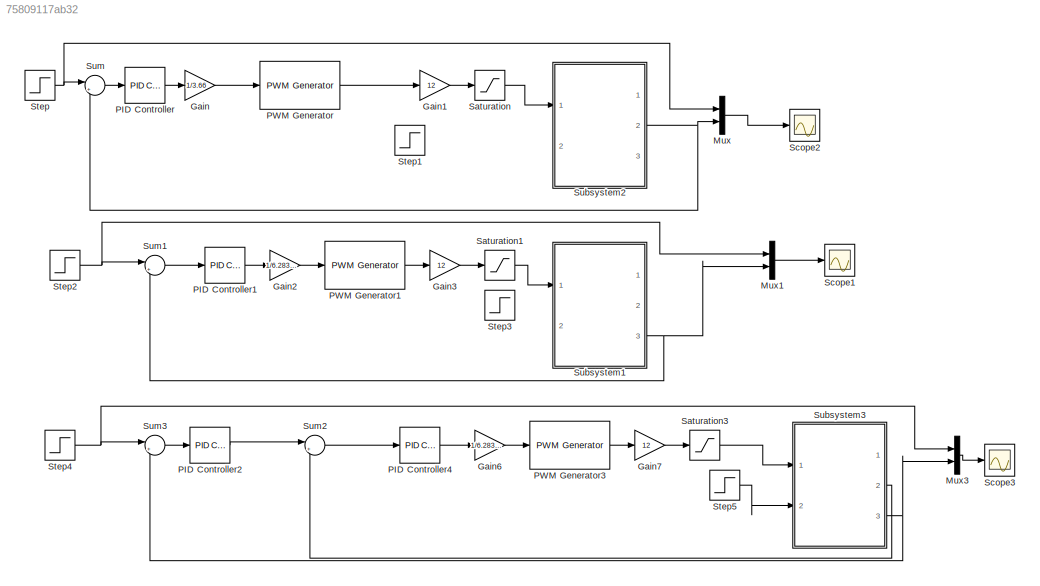
MODEL slx_75809117ab32
KIND model
CONFIG AbsTol = auto
CONFIG EnableMultiTasking = off
CONFIG FixedStep = auto
CONFIG MaxStep = auto
CONFIG MinStep = auto
CONFIG RelTol = 1e-3
CONFIG SampleTimeConstraint = Unconstrained
CONFIG SolverName = VariableStepAuto
CONFIG StartTime = 0.0
CONFIG StopTime = 10.0
BLOCK [Gain] Gain
  Gain = 1/3.66
BLOCK [Gain] Gain1
  Gain = 12
BLOCK [Gain] Gain2
  Gain = 1/6.28319
BLOCK [Gain] Gain3
  Gain = 12
BLOCK [Gain] Gain6
  Gain = 1/6.28319
BLOCK [Gain] Gain7
  Gain = 12
BLOCK [Mux] Mux
  DisplayOption = bar
  Inputs = 2
  Ports = [2, 1]
BLOCK [Mux] Mux1
  DisplayOption = bar
  Inputs = 2
  Ports = [2, 1]
BLOCK [Mux] Mux3
  DisplayOption = bar
  Inputs = 2
  Ports = [2, 1]
BLOCK [Reference] PID Controller  REF=pid_lib/PID Controller
  Ports = [1, 1]
  SourceBlock = pid_lib/PID Controller
  SourceProductBaseCode = SL
  SourceType = PID 1dof
BLOCK [Reference] PID Controller1  REF=pid_lib/PID Controller
  Ports = [1, 1]
  SourceBlock = pid_lib/PID Controller
  SourceProductBaseCode = SL
  SourceType = PID 1dof
BLOCK [Reference] PID Controller2  REF=pid_lib/PID Controller
  Ports = [1, 1]
  SourceBlock = pid_lib/PID Controller
  SourceProductBaseCode = SL
  SourceType = PID 1dof
BLOCK [Reference] PID Controller4  REF=pid_lib/PID Controller
  Ports = [1, 1]
  SourceBlock = pid_lib/PID Controller
  SourceProductBaseCode = SL
  SourceType = PID 1dof
BLOCK [Reference] PWM Generator  REF=eePwmGenerator/PWM Generator
  Ports = [1, 1]
  SourceBlock = eePwmGenerator/PWM Generator
  SourceProductBaseCode = PS
  SourceType = PWM Generator
BLOCK [Reference] PWM Generator1  REF=eePwmGenerator/PWM Generator
  Ports = [1, 1]
  SourceBlock = eePwmGenerator/PWM Generator
  SourceProductBaseCode = PS
  SourceType = PWM Generator
BLOCK [Reference] PWM Generator3  REF=eePwmGenerator/PWM Generator
  Ports = [1, 1]
  SourceBlock = eePwmGenerator/PWM Generator
  SourceProductBaseCode = PS
  SourceType = PWM Generator
BLOCK [Saturate] Saturation
  LowerLimit = 0
  UpperLimit = 12
BLOCK [Saturate] Saturation1
  LowerLimit = 0
  UpperLimit = 12
BLOCK [Saturate] Saturation3
  LowerLimit = 0
  UpperLimit = 12
BLOCK [Scope] Scope1
  Floating = off
  NumInputPorts = 1
  Ports = [1]
  ScopeSpecificationString = Simulink.scopes.TimeScopeBlockCfg('CurrentConfiguration', extmgr.ConfigurationSet(extmgr.Configuration('Core','General UI',true,'FigureColor',[1 1 1]),extmgr.Configuration('Core','Source UI',true),extmgr.Configuration('Sources','WiredSimulink',true,'DataLoggingVariableName','ScopeData1'),extmgr.Configuration('Visuals','Time Domain',true,'SerializedDisplays',{struct('MinYLimReal','-0.07449','MaxYLi...<+2308ch>
BLOCK [Scope] Scope2
  Floating = off
  NumInputPorts = 1
  Ports = [1]
  ScopeSpecificationString = Simulink.scopes.TimeScopeBlockCfg('CurrentConfiguration', extmgr.ConfigurationSet(extmgr.Configuration('Core','General UI',true,'FigureColor',[0.941176470588235 0.941176470588235 0.941176470588235]),extmgr.Configuration('Core','Source UI',true),extmgr.Configuration('Sources','WiredSimulink',true),extmgr.Configuration('Visuals','Time Domain',true,'SerializedDisplays',{struct('MinYLimReal','-0.43845...<+2374ch>
BLOCK [Scope] Scope3
  Floating = off
  NumInputPorts = 1
  Ports = [1]
  ScopeSpecificationString = Simulink.scopes.TimeScopeBlockCfg('CurrentConfiguration', extmgr.ConfigurationSet(extmgr.Configuration('Core','General UI',true,'FigureColor',[1 1 1]),extmgr.Configuration('Core','Source UI',true),extmgr.Configuration('Sources','WiredSimulink',true,'DataLoggingVariableName','ScopeData3'),extmgr.Configuration('Visuals','Time Domain',true,'SerializedDisplays',{struct('MinYLimReal','-0.07413','MaxYLi...<+2231ch>
BLOCK [Step] Step
  After = 3.507
  SampleTime = 0
  Time = 0.5
BLOCK [Step] Step1
  After = 0.1
  SampleTime = 0
BLOCK [Step] Step2
  After = 0.588
  SampleTime = 0
  Time = 0.5
BLOCK [Step] Step3
  After = 0.1
  SampleTime = 0
BLOCK [Step] Step4
  After = 0.588
  SampleTime = 0
  Time = 0.5
BLOCK [Step] Step5
  After = 0.1
  SampleTime = 0
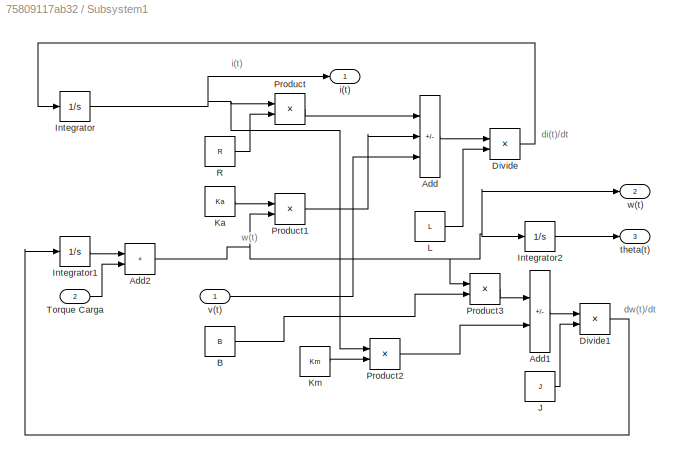
BLOCK [SubSystem] Subsystem1
  Ports = [2, 3]
  RequestExecContextInheritance = off
BLOCK [Sum] Subsystem1/Add
  IconShape = rectangular
  Inputs = --+
  Ports = [3, 1]
BLOCK [Sum] Subsystem1/Add1
  IconShape = rectangular
  Inputs = -+
  Ports = [2, 1]
BLOCK [Sum] Subsystem1/Add2
  IconShape = rectangular
  Ports = [2, 1]
BLOCK [Constant] Subsystem1/B
  Value = B
BLOCK [Product] Subsystem1/Divide
  Inputs = */
  Ports = [2, 1]
BLOCK [Product] Subsystem1/Divide1
  Inputs = */
  Ports = [2, 1]
BLOCK [Integrator] Subsystem1/Integrator
  Ports = [1, 1]
BLOCK [Integrator] Subsystem1/Integrator1
  Ports = [1, 1]
BLOCK [Integrator] Subsystem1/Integrator2
  Ports = [1, 1]
BLOCK [Constant] Subsystem1/J
  Value = J
BLOCK [Constant] Subsystem1/Ka
  Value = Ka
BLOCK [Constant] Subsystem1/Km
  Value = Km
BLOCK [Constant] Subsystem1/L
  Value = L
BLOCK [Product] Subsystem1/Product
  Ports = [2, 1]
BLOCK [Product] Subsystem1/Product1
  Ports = [2, 1]
BLOCK [Product] Subsystem1/Product2
  Ports = [2, 1]
BLOCK [Product] Subsystem1/Product3
  Ports = [2, 1]
BLOCK [Constant] Subsystem1/R
  Value = R
BLOCK [Inport] Subsystem1/Torque Carga
  Port = 2
BLOCK [Outport] Subsystem1/i(t)
  VectorParamsAs1DForOutWhenUnconnected = off
BLOCK [Outport] Subsystem1/theta(t)
  Port = 3
  VectorParamsAs1DForOutWhenUnconnected = off
BLOCK [Inport] Subsystem1/v(t)
BLOCK [Outport] Subsystem1/w(t)
  Port = 2
  VectorParamsAs1DForOutWhenUnconnected = off
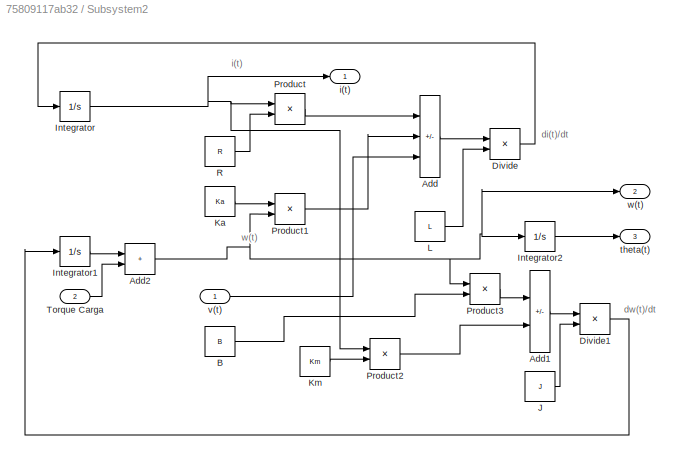
BLOCK [SubSystem] Subsystem2
  Ports = [2, 3]
  RequestExecContextInheritance = off
BLOCK [Sum] Subsystem2/Add
  IconShape = rectangular
  Inputs = --+
  Ports = [3, 1]
BLOCK [Sum] Subsystem2/Add1
  IconShape = rectangular
  Inputs = -+
  Ports = [2, 1]
BLOCK [Sum] Subsystem2/Add2
  IconShape = rectangular
  Ports = [2, 1]
BLOCK [Constant] Subsystem2/B
  Value = B
BLOCK [Product] Subsystem2/Divide
  Inputs = */
  Ports = [2, 1]
BLOCK [Product] Subsystem2/Divide1
  Inputs = */
  Ports = [2, 1]
BLOCK [Integrator] Subsystem2/Integrator
  Ports = [1, 1]
BLOCK [Integrator] Subsystem2/Integrator1
  Ports = [1, 1]
BLOCK [Integrator] Subsystem2/Integrator2
  Ports = [1, 1]
BLOCK [Constant] Subsystem2/J
  Value = J
BLOCK [Constant] Subsystem2/Ka
  Value = Ka
BLOCK [Constant] Subsystem2/Km
  Value = Km
BLOCK [Constant] Subsystem2/L
  Value = L
BLOCK [Product] Subsystem2/Product
  Ports = [2, 1]
BLOCK [Product] Subsystem2/Product1
  Ports = [2, 1]
BLOCK [Product] Subsystem2/Product2
  Ports = [2, 1]
BLOCK [Product] Subsystem2/Product3
  Ports = [2, 1]
BLOCK [Constant] Subsystem2/R
  Value = R
BLOCK [Inport] Subsystem2/Torque Carga
  Port = 2
BLOCK [Outport] Subsystem2/i(t)
  VectorParamsAs1DForOutWhenUnconnected = off
BLOCK [Outport] Subsystem2/theta(t)
  Port = 3
  VectorParamsAs1DForOutWhenUnconnected = off
BLOCK [Inport] Subsystem2/v(t)
BLOCK [Outport] Subsystem2/w(t)
  Port = 2
  VectorParamsAs1DForOutWhenUnconnected = off
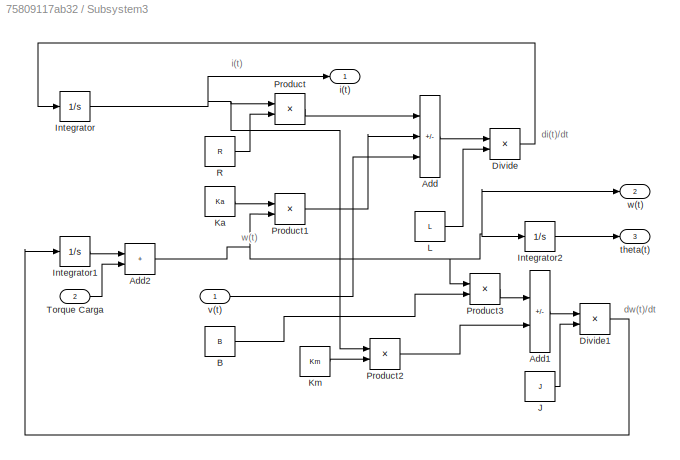
BLOCK [SubSystem] Subsystem3
  Ports = [2, 3]
  RequestExecContextInheritance = off
BLOCK [Sum] Subsystem3/Add
  IconShape = rectangular
  Inputs = --+
  Ports = [3, 1]
BLOCK [Sum] Subsystem3/Add1
  IconShape = rectangular
  Inputs = -+
  Ports = [2, 1]
BLOCK [Sum] Subsystem3/Add2
  IconShape = rectangular
  Ports = [2, 1]
BLOCK [Constant] Subsystem3/B
  Value = B
BLOCK [Product] Subsystem3/Divide
  Inputs = */
  Ports = [2, 1]
BLOCK [Product] Subsystem3/Divide1
  Inputs = */
  Ports = [2, 1]
BLOCK [Integrator] Subsystem3/Integrator
  Ports = [1, 1]
BLOCK [Integrator] Subsystem3/Integrator1
  Ports = [1, 1]
BLOCK [Integrator] Subsystem3/Integrator2
  Ports = [1, 1]
BLOCK [Constant] Subsystem3/J
  Value = J
BLOCK [Constant] Subsystem3/Ka
  Value = Ka
BLOCK [Constant] Subsystem3/Km
  Value = Km
BLOCK [Constant] Subsystem3/L
  Value = L
BLOCK [Product] Subsystem3/Product
  Ports = [2, 1]
BLOCK [Product] Subsystem3/Product1
  Ports = [2, 1]
BLOCK [Product] Subsystem3/Product2
  Ports = [2, 1]
BLOCK [Product] Subsystem3/Product3
  Ports = [2, 1]
BLOCK [Constant] Subsystem3/R
  Value = R
BLOCK [Inport] Subsystem3/Torque Carga
  Port = 2
BLOCK [Outport] Subsystem3/i(t)
  VectorParamsAs1DForOutWhenUnconnected = off
BLOCK [Outport] Subsystem3/theta(t)
  Port = 3
  VectorParamsAs1DForOutWhenUnconnected = off
BLOCK [Inport] Subsystem3/v(t)
BLOCK [Outport] Subsystem3/w(t)
  Port = 2
  VectorParamsAs1DForOutWhenUnconnected = off
BLOCK [Sum] Sum
  Inputs = |+-
  Ports = [2, 1]
BLOCK [Sum] Sum1
  Inputs = |+-
  Ports = [2, 1]
BLOCK [Sum] Sum2
  Inputs = |+-
  Ports = [2, 1]
BLOCK [Sum] Sum3
  Inputs = |+-
  Ports = [2, 1]
ANNOTATION Subsystem1: di(t)/dt
ANNOTATION Subsystem1: dw(t)/dt
ANNOTATION Subsystem1: i(t)
ANNOTATION Subsystem1: w(t)
ANNOTATION Subsystem2: di(t)/dt
ANNOTATION Subsystem2: dw(t)/dt
ANNOTATION Subsystem2: i(t)
ANNOTATION Subsystem2: w(t)
ANNOTATION Subsystem3: di(t)/dt
ANNOTATION Subsystem3: dw(t)/dt
ANNOTATION Subsystem3: i(t)
ANNOTATION Subsystem3: w(t)
LINE Gain1:1 -> Saturation:1
LINE Gain2:1 -> PWM Generator1:1
LINE Gain3:1 -> Saturation1:1
LINE Gain6:1 -> PWM Generator3:1
LINE Gain7:1 -> Saturation3:1
LINE Gain:1 -> PWM Generator:1
LINE Mux1:1 -> Scope1:1
LINE Mux3:1 -> Scope3:1
LINE Mux:1 -> Scope2:1
LINE PID Controller1:1 -> Gain2:1
LINE PID Controller2:1 -> Sum2:1
LINE PID Controller4:1 -> Gain6:1
LINE PID Controller:1 -> Gain:1
LINE PWM Generator1:1 -> Gain3:1
LINE PWM Generator3:1 -> Gain7:1
LINE PWM Generator:1 -> Gain1:1
LINE Saturation1:1 -> Subsystem1:1
LINE Saturation3:1 -> Subsystem3:1
LINE Saturation:1 -> Subsystem2:1
NET Step2:1 -> Mux1:1, Sum1:1
NET Step4:1 -> Mux3:1, Sum3:1
LINE Step5:1 -> Subsystem3:2
NET Step:1 -> Mux:1, Sum:1
LINE Subsystem1/Add1:1 -> Subsystem1/Divide1:1
NET Subsystem1/Add2:1 -> Subsystem1/Integrator2:1, Subsystem1/Product1:2, Subsystem1/Product3:1, Subsystem1/w(t):1
LINE Subsystem1/Add:1 -> Subsystem1/Divide:1
LINE Subsystem1/B:1 -> Subsystem1/Product3:2
LINE Subsystem1/Divide1:1 -> Subsystem1/Integrator1:1
LINE Subsystem1/Divide:1 -> Subsystem1/Integrator:1
LINE Subsystem1/Integrator1:1 -> Subsystem1/Add2:1
LINE Subsystem1/Integrator2:1 -> Subsystem1/theta(t):1
NET Subsystem1/Integrator:1 -> Subsystem1/Product2:1, Subsystem1/Product:1, Subsystem1/i(t):1
LINE Subsystem1/J:1 -> Subsystem1/Divide1:2
LINE Subsystem1/Ka:1 -> Subsystem1/Product1:1
LINE Subsystem1/Km:1 -> Subsystem1/Product2:2
LINE Subsystem1/L:1 -> Subsystem1/Divide:2
LINE Subsystem1/Product1:1 -> Subsystem1/Add:2
LINE Subsystem1/Product2:1 -> Subsystem1/Add1:2
LINE Subsystem1/Product3:1 -> Subsystem1/Add1:1
LINE Subsystem1/Product:1 -> Subsystem1/Add:1
LINE Subsystem1/R:1 -> Subsystem1/Product:2
LINE Subsystem1/Torque Carga:1 -> Subsystem1/Add2:2
LINE Subsystem1/v(t):1 -> Subsystem1/Add:3
NET Subsystem1:3 -> Mux1:2, Sum1:2
LINE Subsystem2/Add1:1 -> Subsystem2/Divide1:1
NET Subsystem2/Add2:1 -> Subsystem2/Integrator2:1, Subsystem2/Product1:2, Subsystem2/Product3:1, Subsystem2/w(t):1
LINE Subsystem2/Add:1 -> Subsystem2/Divide:1
LINE Subsystem2/B:1 -> Subsystem2/Product3:2
LINE Subsystem2/Divide1:1 -> Subsystem2/Integrator1:1
LINE Subsystem2/Divide:1 -> Subsystem2/Integrator:1
LINE Subsystem2/Integrator1:1 -> Subsystem2/Add2:1
LINE Subsystem2/Integrator2:1 -> Subsystem2/theta(t):1
NET Subsystem2/Integrator:1 -> Subsystem2/Product2:1, Subsystem2/Product:1, Subsystem2/i(t):1
LINE Subsystem2/J:1 -> Subsystem2/Divide1:2
LINE Subsystem2/Ka:1 -> Subsystem2/Product1:1
LINE Subsystem2/Km:1 -> Subsystem2/Product2:2
LINE Subsystem2/L:1 -> Subsystem2/Divide:2
LINE Subsystem2/Product1:1 -> Subsystem2/Add:2
LINE Subsystem2/Product2:1 -> Subsystem2/Add1:2
LINE Subsystem2/Product3:1 -> Subsystem2/Add1:1
LINE Subsystem2/Product:1 -> Subsystem2/Add:1
LINE Subsystem2/R:1 -> Subsystem2/Product:2
LINE Subsystem2/Torque Carga:1 -> Subsystem2/Add2:2
LINE Subsystem2/v(t):1 -> Subsystem2/Add:3
NET Subsystem2:2 -> Mux:2, Sum:2
LINE Subsystem3/Add1:1 -> Subsystem3/Divide1:1
NET Subsystem3/Add2:1 -> Subsystem3/Integrator2:1, Subsystem3/Product1:2, Subsystem3/Product3:1, Subsystem3/w(t):1
LINE Subsystem3/Add:1 -> Subsystem3/Divide:1
LINE Subsystem3/B:1 -> Subsystem3/Product3:2
LINE Subsystem3/Divide1:1 -> Subsystem3/Integrator1:1
LINE Subsystem3/Divide:1 -> Subsystem3/Integrator:1
LINE Subsystem3/Integrator1:1 -> Subsystem3/Add2:1
LINE Subsystem3/Integrator2:1 -> Subsystem3/theta(t):1
NET Subsystem3/Integrator:1 -> Subsystem3/Product2:1, Subsystem3/Product:1, Subsystem3/i(t):1
LINE Subsystem3/J:1 -> Subsystem3/Divide1:2
LINE Subsystem3/Ka:1 -> Subsystem3/Product1:1
LINE Subsystem3/Km:1 -> Subsystem3/Product2:2
LINE Subsystem3/L:1 -> Subsystem3/Divide:2
LINE Subsystem3/Product1:1 -> Subsystem3/Add:2
LINE Subsystem3/Product2:1 -> Subsystem3/Add1:2
LINE Subsystem3/Product3:1 -> Subsystem3/Add1:1
LINE Subsystem3/Product:1 -> Subsystem3/Add:1
LINE Subsystem3/R:1 -> Subsystem3/Product:2
LINE Subsystem3/Torque Carga:1 -> Subsystem3/Add2:2
LINE Subsystem3/v(t):1 -> Subsystem3/Add:3
LINE Subsystem3:2 -> Sum2:2
NET Subsystem3:3 -> Mux3:2, Sum3:2
LINE Sum1:1 -> PID Controller1:1
LINE Sum2:1 -> PID Controller4:1
LINE Sum3:1 -> PID Controller2:1
LINE Sum:1 -> PID Controller:1
note: NET lines group one-source signal fan-out (src -> all destinations, sorted); 1:1 wires keep LINE
